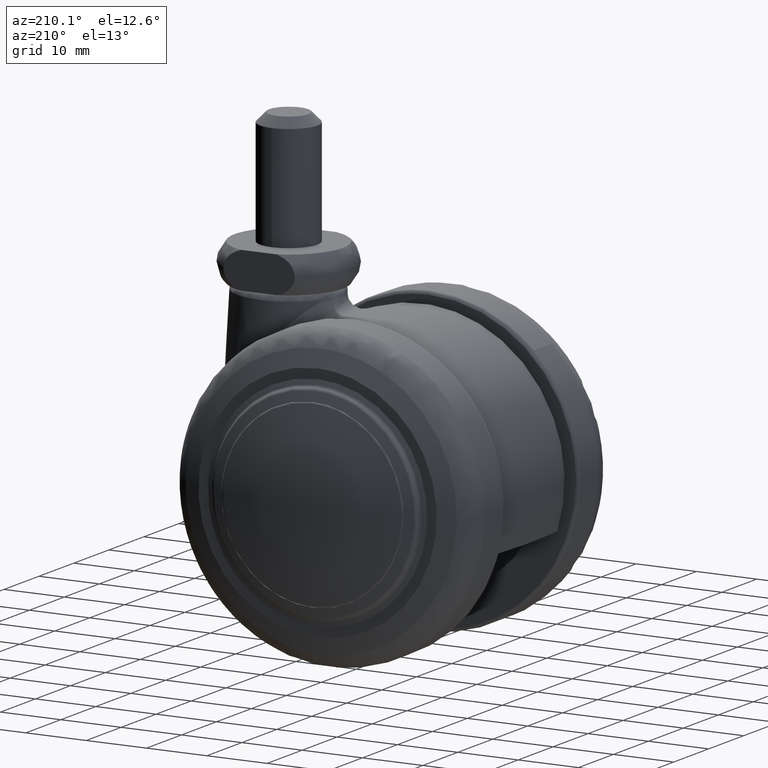
[diagram: clean part render]
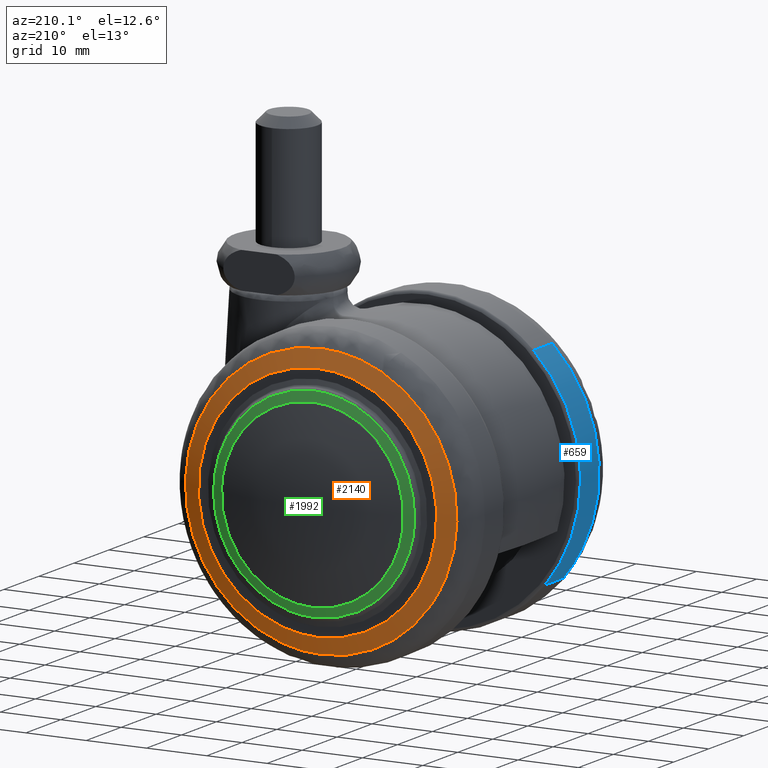
[diagram: same view with three faces highlighted in distinct colors, each labeled with its STEP entity id]
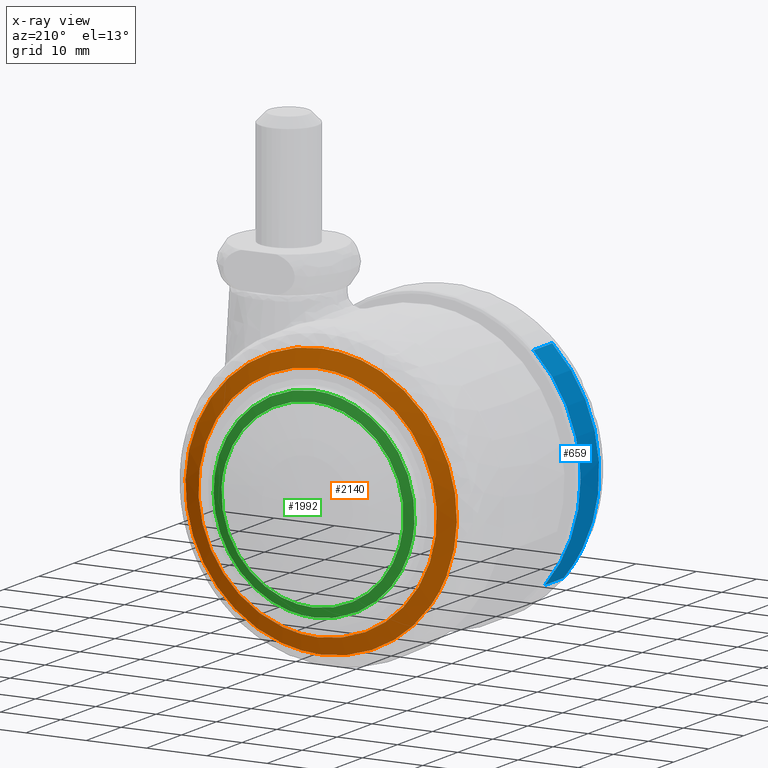
[diagram: x-ray of the same camera — body ghosted, the three highlighted faces saturated]
A machine part, auxiliary view with three faces highlighted in distinct colors.
The next image is the same camera in x-ray (body ghosted, the three faces saturated) — at least one of them is partly hidden behind the body in this view.
Their STEP definitions:

[orange] entity #2140 — the highlighted face is a freeform B-spline surface patch.
#1491=CARTESIAN_POINT('',(9.975672701248211,-20.052650238675671,20.167695820285779));
#1492=VERTEX_POINT('',#1491);
#1493=CARTESIAN_POINT('',(0.0,-20.052650239281650,22.500000010546600));
#1494=VERTEX_POINT('',#1493);
#1495=CARTESIAN_POINT('',(9.975672701248211,-20.052650238675664,20.167695820285783));
#1496=CARTESIAN_POINT('',(5.260481765112745,-20.052650239281647,22.500000010546604));
#1497=CARTESIAN_POINT('',(0.0,-20.052650239281650,22.500000010546600));
#1505=(BOUNDED_CURVE()B_SPLINE_CURVE(2,(#1495,#1496,#1497),.UNSPECIFIED.,.F.,.U.)B_SPLINE_CURVE_WITH_KNOTS((3,3),(0.424637790835269,0.500000000000000),.UNSPECIFIED.)CURVE()GEOMETRIC_REPRESENTATION_ITEM()RATIONAL_B_SPLINE_CURVE((0.876646594192813,0.911707679923397,1.0))REPRESENTATION_ITEM(''));
#1506=EDGE_CURVE('',#1492,#1494,#1505,.T.);
#1526=CARTESIAN_POINT('',(20.705216575500302,-20.052650239253548,-8.805907507993847));
#1527=VERTEX_POINT('',#1526);
#1541=CARTESIAN_POINT('',(0.0,-20.052650239281650,-22.500000010546589));
#1542=VERTEX_POINT('',#1541);
#1543=CARTESIAN_POINT('',(0.0,-20.052650239281650,-22.500000010546589));
#1544=CARTESIAN_POINT('',(14.881132990319578,-20.052650239281647,-22.500000010546600));
#1545=CARTESIAN_POINT('',(20.705216575500302,-20.052650239253552,-8.805907507993847));
#1553=(BOUNDED_CURVE()B_SPLINE_CURVE(2,(#1543,#1544,#1545),.UNSPECIFIED.,.F.,.U.)B_SPLINE_CURVE_WITH_KNOTS((3,3),(0.0,0.183550134662979),.UNSPECIFIED.)CURVE()GEOMETRIC_REPRESENTATION_ITEM()RATIONAL_B_SPLINE_CURVE((1.0,0.784957640979670,0.885683713610749))REPRESENTATION_ITEM(''));
#1554=EDGE_CURVE('',#1542,#1527,#1553,.T.);
#1556=CARTESIAN_POINT('',(0.0,-20.052650239281650,22.500000010546600));
#1557=CARTESIAN_POINT('',(-22.500000010546600,-20.052650239281654,22.500000010546600));
#1558=CARTESIAN_POINT('',(-22.500000010546600,-20.052650239281650,1.789254E-015));
#1559=CARTESIAN_POINT('',(-22.500000010546600,-20.052650239281654,-22.500000010546600));
#1560=CARTESIAN_POINT('',(0.0,-20.052650239281650,-22.500000010546589));
#1568=(BOUNDED_CURVE()B_SPLINE_CURVE(2,(#1556,#1557,#1558,#1559,#1560),.UNSPECIFIED.,.F.,.U.)B_SPLINE_CURVE_WITH_KNOTS((3,2,3),(0.500000000000000,0.750000000000000,1.0),.UNSPECIFIED.)CURVE()GEOMETRIC_REPRESENTATION_ITEM()RATIONAL_B_SPLINE_CURVE((1.0,0.707106781186547,1.0,0.707106781186547,1.0))REPRESENTATION_ITEM(''));
#1569=EDGE_CURVE('',#1494,#1542,#1568,.T.);
#1591=CARTESIAN_POINT('',(20.705216575500298,-20.052650239253545,-8.805907507993847));
#1592=CARTESIAN_POINT('',(22.500000010546593,-20.052650239281647,-4.585856400647058));
#1593=CARTESIAN_POINT('',(22.500000010546600,-20.052650239281650,1.789254E-015));
#1594=CARTESIAN_POINT('',(22.500000010546596,-20.052650239281643,13.972709978116622));
#1595=CARTESIAN_POINT('',(9.975672701248211,-20.052650238675664,20.167695820285783));
#1603=(BOUNDED_CURVE()B_SPLINE_CURVE(2,(#1591,#1592,#1593,#1594,#1595),.UNSPECIFIED.,.F.,.U.)B_SPLINE_CURVE_WITH_KNOTS((3,2,3),(0.183550134662979,0.250000000000000,0.424637790835269),.UNSPECIFIED.)CURVE()GEOMETRIC_REPRESENTATION_ITEM()RATIONAL_B_SPLINE_CURVE((0.885683713610749,0.922149140206877,1.0,0.795399101263150,0.876646594192813))REPRESENTATION_ITEM(''));
#1604=EDGE_CURVE('',#1527,#1492,#1603,.T.);
#2065=CARTESIAN_POINT('',(0.0,-21.081931999999899,-19.765886228730452));
#2066=VERTEX_POINT('',#2065);
#2067=CARTESIAN_POINT('',(0.0,-21.081931999999899,19.765886228730459));
#2068=VERTEX_POINT('',#2067);
#2069=CARTESIAN_POINT('',(0.0,-21.081931999999899,-19.765886228730452));
#2070=CARTESIAN_POINT('',(19.765886228730455,-21.081931999999892,-19.765886228730455));
#2071=CARTESIAN_POINT('',(19.765886228730452,-21.081931999999899,1.789254E-015));
#2072=CARTESIAN_POINT('',(19.765886228730455,-21.081931999999892,19.765886228730455));
#2073=CARTESIAN_POINT('',(0.0,-21.081931999999899,19.765886228730459));
#2081=(BOUNDED_CURVE()B_SPLINE_CURVE(2,(#2069,#2070,#2071,#2072,#2073),.UNSPECIFIED.,.F.,.U.)B_SPLINE_CURVE_WITH_KNOTS((3,2,3),(0.0,0.250000000000000,0.500000000000000),.UNSPECIFIED.)CURVE()GEOMETRIC_REPRESENTATION_ITEM()RATIONAL_B_SPLINE_CURVE((1.0,0.707106781186548,1.0,0.707106781186548,1.0))REPRESENTATION_ITEM(''));
#2082=EDGE_CURVE('',#2066,#2068,#2081,.T.);
#2084=CARTESIAN_POINT('',(0.0,-21.081931999999899,19.765886228730459));
#2085=CARTESIAN_POINT('',(-19.765886228730455,-21.081931999999892,19.765886228730455));
#2086=CARTESIAN_POINT('',(-19.765886228730452,-21.081931999999899,1.789254E-015));
#2087=CARTESIAN_POINT('',(-19.765886228730455,-21.081931999999892,-19.765886228730455));
#2088=CARTESIAN_POINT('',(0.0,-21.081931999999899,-19.765886228730452));
#2096=(BOUNDED_CURVE()B_SPLINE_CURVE(2,(#2084,#2085,#2086,#2087,#2088),.UNSPECIFIED.,.F.,.U.)B_SPLINE_CURVE_WITH_KNOTS((3,2,3),(0.500000000000000,0.750000000000000,1.0),.UNSPECIFIED.)CURVE()GEOMETRIC_REPRESENTATION_ITEM()RATIONAL_B_SPLINE_CURVE((1.0,0.707106781186548,1.0,0.707106781186548,1.0))REPRESENTATION_ITEM(''));
#2097=EDGE_CURVE('',#2068,#2066,#2096,.T.);
#2106=CARTESIAN_POINT('',(-23.529031152137861,-14.358802987607762,-23.529032246445652));
#2107=CARTESIAN_POINT('',(-12.279879532431531,-19.174364121992451,-24.559760207108795));
#2108=CARTESIAN_POINT('',(12.279867601254651,-19.174364121992451,-24.559760207108795));
#2109=CARTESIAN_POINT('',(23.529010210099933,-14.358811952515842,-23.529034165304342));
#2110=CARTESIAN_POINT('',(-24.559759164938963,-19.174364589547135,-12.279880153592352));
#2111=CARTESIAN_POINT('',(-12.842464883672150,-24.431162000000029,-12.842465480960200));
#2112=CARTESIAN_POINT('',(12.842452405885240,-24.431162000000029,-12.842465480960200));
#2113=CARTESIAN_POINT('',(24.559737393241551,-19.174374357104270,-12.279881198921638));
#2114=CARTESIAN_POINT('',(-24.559759164938963,-19.174364589547135,12.279879656306701));
#2115=CARTESIAN_POINT('',(-12.842464883672140,-24.431162000000029,12.842464960892110));
#2116=CARTESIAN_POINT('',(12.842452405885240,-24.431162000000029,12.842464960892110));
#2117=CARTESIAN_POINT('',(24.559737393241551,-19.174374357104270,12.279880701635944));
#2118=CARTESIAN_POINT('',(-23.529031232114985,-14.358803361260932,23.529031373591785));
#2119=CARTESIAN_POINT('',(-12.279879576000360,-19.174364529099652,24.559759299675136));
#2120=CARTESIAN_POINT('',(12.279867644823439,-19.174364529099652,24.559759299675136));
#2121=CARTESIAN_POINT('',(23.529010290077014,-14.358812326169089,23.529033292450432));
#2129=(BOUNDED_SURFACE()B_SPLINE_SURFACE(2,2,((#2106,#2110,#2114,#2118),(#2107,#2111,#2115,#2119),(#2108,#2112,#2116,#2120),(#2109,#2113,#2117,#2121)),.UNSPECIFIED.,.F.,.F.,.U.)B_SPLINE_SURFACE_WITH_KNOTS((3,1,3),(3,1,3),(9.826574003028870,34.408243677050592,58.989889467430118),(9.826572859764099,34.408243677050592,58.989913498878479),.UNSPECIFIED.)GEOMETRIC_REPRESENTATION_ITEM()RATIONAL_B_SPLINE_SURFACE(((1.091627173310557,1.045813584524542,1.045813584524542,1.091627169600026),(1.045813588786015,1.0,1.0,1.045813585075484),(1.045813588786015,1.0,1.0,1.045813585075484),(1.091627084285301,1.045813495499286,1.045813495499286,1.091627080574769)))REPRESENTATION_ITEM('')SURFACE());
#2130=ORIENTED_EDGE('',*,*,#1554,.T.);
#2131=ORIENTED_EDGE('',*,*,#1604,.T.);
#2132=ORIENTED_EDGE('',*,*,#1506,.T.);
#2133=ORIENTED_EDGE('',*,*,#1569,.T.);
#2134=EDGE_LOOP('',(#2130,#2131,#2132,#2133));
#2135=FACE_OUTER_BOUND('',#2134,.T.);
#2136=ORIENTED_EDGE('',*,*,#2082,.F.);
#2137=ORIENTED_EDGE('',*,*,#2097,.F.);
#2138=EDGE_LOOP('',(#2136,#2137));
#2139=FACE_BOUND('',#2138,.T.);
#2140=ADVANCED_FACE('',(#2135,#2139),#2129,.T.);

[blue] entity #659 — the highlighted face is a freeform B-spline surface patch.
#442=CARTESIAN_POINT('',(-19.088893368904021,-16.344550999999949,-16.143548245370319));
#443=VERTEX_POINT('',#442);
#459=CARTESIAN_POINT('',(-19.088893340583990,-10.999999999996691,-16.143548278857281));
#460=VERTEX_POINT('',#459);
#461=CARTESIAN_POINT('',(-19.088893340583990,-10.999999999996691,-16.143548278857281));
#462=CARTESIAN_POINT('',(-19.088893368904021,-16.344550999999949,-16.143548245370319));
#463=QUASI_UNIFORM_CURVE('',1,(#461,#462),.UNSPECIFIED.,.F.,.U.);
#464=EDGE_CURVE('',#460,#443,#463,.T.);
#513=CARTESIAN_POINT('',(-17.208864027242701,-10.999999999997421,18.134359621775221));
#514=VERTEX_POINT('',#513);
#528=CARTESIAN_POINT('',(-17.208864031641689,-16.344550999999999,18.134359617600751));
#529=VERTEX_POINT('',#528);
#530=CARTESIAN_POINT('',(-17.208864027242701,-10.999999999997421,18.134359621775221));
#531=CARTESIAN_POINT('',(-17.208864031641689,-16.344550999999999,18.134359617600751));
#532=QUASI_UNIFORM_CURVE('',1,(#530,#531),.UNSPECIFIED.,.F.,.U.);
#533=EDGE_CURVE('',#514,#529,#532,.T.);
#598=CARTESIAN_POINT('',(-17.208864392343848,-10.866386224989920,18.134359275307190));
#599=CARTESIAN_POINT('',(-34.334108954376731,-10.866386224989915,1.883108989611296));
#600=CARTESIAN_POINT('',(-19.088891073511626,-10.866386224989915,-16.143550959550634));
#601=CARTESIAN_POINT('',(-17.208864392343848,-16.481505119395489,18.134359275307190));
#602=CARTESIAN_POINT('',(-34.334108954376731,-16.481505119395482,1.883108989611296));
#603=CARTESIAN_POINT('',(-19.088891073511626,-16.481505119395493,-16.143550959550634));
#611=(BOUNDED_SURFACE()B_SPLINE_SURFACE(2,1,((#598,#601),(#599,#602),(#600,#603)),.UNSPECIFIED.,.F.,.F.,.U.)B_SPLINE_SURFACE_WITH_KNOTS((3,3),(2,2),(0.0,39.753588967719757),(0.0,5.615118894405573),.UNSPECIFIED.)GEOMETRIC_REPRESENTATION_ITEM()RATIONAL_B_SPLINE_SURFACE(((1.0,1.0),(0.718822509939086,0.718822509939086),(0.977505800795127,0.977505800795127)))REPRESENTATION_ITEM('')SURFACE());
#612=CARTESIAN_POINT('',(-17.208864031641689,-16.344551000000003,18.134359617600747));
#613=CARTESIAN_POINT('',(-24.999999999999996,-16.344550999999999,10.740848238221860));
#614=CARTESIAN_POINT('',(-25.0,-16.344550999999999,1.789254E-015));
#615=CARTESIAN_POINT('',(-25.000000000000007,-16.344550999999999,-9.153976779533146));
#616=CARTESIAN_POINT('',(-19.088893368904021,-16.344550999999942,-16.143548245370322));
#624=(BOUNDED_CURVE()B_SPLINE_CURVE(2,(#612,#613,#614,#615,#616),.UNSPECIFIED.,.F.,.U.)B_SPLINE_CURVE_WITH_KNOTS((3,2,3),(0.621049520655546,0.750000000000000,0.862408068232120),.UNSPECIFIED.)CURVE()GEOMETRIC_REPRESENTATION_ITEM()RATIONAL_B_SPLINE_CURVE((0.853699661814012,0.848925116149061,1.0,0.868305756299569,0.855039476852381))REPRESENTATION_ITEM(''));
#625=EDGE_CURVE('',#529,#443,#624,.T.);
#626=ORIENTED_EDGE('',*,*,#625,.F.);
#627=ORIENTED_EDGE('',*,*,#533,.F.);
#628=CARTESIAN_POINT('',(-25.0,-10.999999999990640,3.546573E-015));
#629=VERTEX_POINT('',#628);
#630=CARTESIAN_POINT('',(-17.208864027242701,-10.999999999997421,18.134359621775214));
#631=CARTESIAN_POINT('',(-24.999999999999940,-10.999999999994664,10.740848245405694));
#632=CARTESIAN_POINT('',(-25.0,-10.999999999990642,3.546573E-015));
#640=(BOUNDED_CURVE()B_SPLINE_CURVE(2,(#630,#631,#632),.UNSPECIFIED.,.F.,.U.)B_SPLINE_CURVE_WITH_KNOTS((3,3),(0.621049520582329,0.749999999999999),.UNSPECIFIED.)CURVE()GEOMETRIC_REPRESENTATION_ITEM()RATIONAL_B_SPLINE_CURVE((0.853699661819434,0.848925116063282,0.999999999999998))REPRESENTATION_ITEM(''));
#641=EDGE_CURVE('',#514,#629,#640,.T.);
#642=ORIENTED_EDGE('',*,*,#641,.T.);
#643=CARTESIAN_POINT('',(-25.0,-10.999999999990640,3.546573E-015));
#644=CARTESIAN_POINT('',(-24.999999999999993,-10.999999999994067,-9.153976804401419));
#645=CARTESIAN_POINT('',(-19.088893340583990,-10.999999999996685,-16.143548278857281));
#653=(BOUNDED_CURVE()B_SPLINE_CURVE(2,(#643,#644,#645),.UNSPECIFIED.,.F.,.U.)B_SPLINE_CURVE_WITH_KNOTS((3,3),(0.750000000000000,0.862408068497279),.UNSPECIFIED.)CURVE()GEOMETRIC_REPRESENTATION_ITEM()RATIONAL_B_SPLINE_CURVE((1.0,0.868305755988916,0.855039476789794))REPRESENTATION_ITEM(''));
#654=EDGE_CURVE('',#629,#460,#653,.T.);
#655=ORIENTED_EDGE('',*,*,#654,.T.);
#656=ORIENTED_EDGE('',*,*,#464,.T.);
#657=EDGE_LOOP('',(#626,#627,#642,#655,#656));
#658=FACE_OUTER_BOUND('',#657,.T.);
#659=ADVANCED_FACE('',(#658),#611,.T.);

[green] entity #1992 — the highlighted face is a freeform B-spline surface patch.
#271=CARTESIAN_POINT('',(14.994445155853590,-22.512973365200398,-1.782305941182970));
#272=VERTEX_POINT('',#271);
#278=CARTESIAN_POINT('',(0.0,-22.512973365200398,15.100000000000000));
#279=VERTEX_POINT('',#278);
#280=CARTESIAN_POINT('',(14.994445155853587,-22.512973365200402,-1.782305941182971));
#281=CARTESIAN_POINT('',(15.100000000000000,-22.512973365200402,-0.894278647520827));
#282=CARTESIAN_POINT('',(15.100000000000000,-22.512973365200398,1.789254E-015));
#283=CARTESIAN_POINT('',(15.100000000000005,-22.512973365200398,15.100000000000005));
#284=CARTESIAN_POINT('',(0.0,-22.512973365200398,15.100000000000000));
#292=(BOUNDED_CURVE()B_SPLINE_CURVE(2,(#280,#281,#282,#283,#284),.UNSPECIFIED.,.F.,.U.)B_SPLINE_CURVE_WITH_KNOTS((3,2,3),(0.229562597521343,0.250000000000000,0.500000000000000),.UNSPECIFIED.)CURVE()GEOMETRIC_REPRESENTATION_ITEM()RATIONAL_B_SPLINE_CURVE((0.956026997244275,0.976056093615361,1.0,0.707106781186547,1.0))REPRESENTATION_ITEM(''));
#293=EDGE_CURVE('',#272,#279,#292,.T.);
#295=CARTESIAN_POINT('',(-15.071836618438310,-22.512973365200398,0.921813943667406));
#296=VERTEX_POINT('',#295);
#297=CARTESIAN_POINT('',(0.0,-22.512973365200398,15.100000000000000));
#298=CARTESIAN_POINT('',(-14.204679553686956,-22.512973365200398,15.100000000000000));
#299=CARTESIAN_POINT('',(-15.071836618438306,-22.512973365200398,0.921813943667406));
#307=(BOUNDED_CURVE()B_SPLINE_CURVE(2,(#297,#298,#299),.UNSPECIFIED.,.F.,.U.)B_SPLINE_CURVE_WITH_KNOTS((3,3),(0.500000000000000,0.739333179797454),.UNSPECIFIED.)CURVE()GEOMETRIC_REPRESENTATION_ITEM()RATIONAL_B_SPLINE_CURVE((1.0,0.719603738401060,0.976072507936465))REPRESENTATION_ITEM(''));
#308=EDGE_CURVE('',#279,#296,#307,.T.);
#382=CARTESIAN_POINT('',(0.0,-22.512973365200398,-15.100000000000000));
#383=VERTEX_POINT('',#382);
#384=CARTESIAN_POINT('',(-15.071836618438306,-22.512973365200398,0.921813943667406));
#385=CARTESIAN_POINT('',(-15.100000000000003,-22.512973365200398,0.461337197513431));
#386=CARTESIAN_POINT('',(-15.100000000000000,-22.512973365200398,1.789254E-015));
#387=CARTESIAN_POINT('',(-15.100000000000005,-22.512973365200398,-15.100000000000005));
#388=CARTESIAN_POINT('',(0.0,-22.512973365200398,-15.100000000000000));
#396=(BOUNDED_CURVE()B_SPLINE_CURVE(2,(#384,#385,#386,#387,#388),.UNSPECIFIED.,.F.,.U.)B_SPLINE_CURVE_WITH_KNOTS((3,2,3),(0.739333179797454,0.750000000000000,1.0),.UNSPECIFIED.)CURVE()GEOMETRIC_REPRESENTATION_ITEM()RATIONAL_B_SPLINE_CURVE((0.976072507936465,0.987503042785488,1.0,0.707106781186547,1.0))REPRESENTATION_ITEM(''));
#397=EDGE_CURVE('',#296,#383,#396,.T.);
#399=CARTESIAN_POINT('',(0.0,-22.512973365200398,-15.100000000000000));
#400=CARTESIAN_POINT('',(13.411445251748493,-22.512973365200398,-15.100000000000005));
#401=CARTESIAN_POINT('',(14.994445155853587,-22.512973365200402,-1.782305941182971));
#409=(BOUNDED_CURVE()B_SPLINE_CURVE(2,(#399,#400,#401),.UNSPECIFIED.,.F.,.U.)B_SPLINE_CURVE_WITH_KNOTS((3,3),(0.0,0.229562597521343),.UNSPECIFIED.)CURVE()GEOMETRIC_REPRESENTATION_ITEM()RATIONAL_B_SPLINE_CURVE((1.0,0.731050687571187,0.956026997244275))REPRESENTATION_ITEM(''));
#410=EDGE_CURVE('',#383,#272,#409,.T.);
#1170=CARTESIAN_POINT('',(16.633452372379711,-22.069978345369229,-1.046488120489840));
#1171=VERTEX_POINT('',#1170);
#1185=CARTESIAN_POINT('',(0.0,-22.069978467936402,-16.666339162555900));
#1186=VERTEX_POINT('',#1185);
#1187=CARTESIAN_POINT('',(0.0,-22.069978467936402,-16.666339162555900));
#1188=CARTESIAN_POINT('',(15.650734218292438,-22.069978467936409,-16.666339162555893));
#1189=CARTESIAN_POINT('',(16.633452372379711,-22.069978345369236,-1.046488120489840));
#1197=(BOUNDED_CURVE()B_SPLINE_CURVE(2,(#1187,#1188,#1189),.UNSPECIFIED.,.F.,.U.)B_SPLINE_CURVE_WITH_KNOTS((3,3),(0.0,0.239031910756843),.UNSPECIFIED.)CURVE()GEOMETRIC_REPRESENTATION_ITEM()RATIONAL_B_SPLINE_CURVE((1.0,0.719956697037194,0.975427680489243))REPRESENTATION_ITEM(''));
#1198=EDGE_CURVE('',#1186,#1171,#1197,.T.);
#1200=CARTESIAN_POINT('',(0.0,-22.069978467936402,16.666339162555900));
#1201=VERTEX_POINT('',#1200);
#1202=CARTESIAN_POINT('',(0.0,-22.069978467936402,16.666339162555900));
#1203=CARTESIAN_POINT('',(-16.666339162555897,-22.069978467936405,16.666339162555897));
#1204=CARTESIAN_POINT('',(-16.666339162555900,-22.069978467936402,1.789254E-015));
#1205=CARTESIAN_POINT('',(-16.666339162555897,-22.069978467936405,-16.666339162555897));
#1206=CARTESIAN_POINT('',(0.0,-22.069978467936402,-16.666339162555900));
#1214=(BOUNDED_CURVE()B_SPLINE_CURVE(2,(#1202,#1203,#1204,#1205,#1206),.UNSPECIFIED.,.F.,.U.)B_SPLINE_CURVE_WITH_KNOTS((3,2,3),(0.500000000000000,0.750000000000000,1.0),.UNSPECIFIED.)CURVE()GEOMETRIC_REPRESENTATION_ITEM()RATIONAL_B_SPLINE_CURVE((1.0,0.707106781186547,1.0,0.707106781186547,1.0))REPRESENTATION_ITEM(''));
#1215=EDGE_CURVE('',#1201,#1186,#1214,.T.);
#1217=CARTESIAN_POINT('',(6.855630844107353,-22.069978345371592,15.191023696235989));
#1218=VERTEX_POINT('',#1217);
#1219=CARTESIAN_POINT('',(6.855630844107353,-22.069978345371592,15.191023696235989));
#1220=CARTESIAN_POINT('',(3.586557613120557,-22.069978467936398,16.666339162555904));
#1221=CARTESIAN_POINT('',(0.0,-22.069978467936402,16.666339162555900));
#1229=(BOUNDED_CURVE()B_SPLINE_CURVE(2,(#1219,#1220,#1221),.UNSPECIFIED.,.F.,.U.)B_SPLINE_CURVE_WITH_KNOTS((3,3),(0.430143025654430,0.500000000000000),.UNSPECIFIED.)CURVE()GEOMETRIC_REPRESENTATION_ITEM()RATIONAL_B_SPLINE_CURVE((0.882053103083072,0.918157463709429,1.0))REPRESENTATION_ITEM(''));
#1230=EDGE_CURVE('',#1218,#1201,#1229,.T.);
#1287=CARTESIAN_POINT('',(16.633452372379701,-22.069978345369229,-1.046488120489840));
#1288=CARTESIAN_POINT('',(16.666339162555897,-22.069978467936398,-0.523760807694132));
#1289=CARTESIAN_POINT('',(16.666339162555900,-22.069978467936402,1.789254E-015));
#1290=CARTESIAN_POINT('',(16.666339162555900,-22.069978467936402,10.763501038371819));
#1291=CARTESIAN_POINT('',(6.855630844107354,-22.069978345371592,15.191023696235993));
#1299=(BOUNDED_CURVE()B_SPLINE_CURVE(2,(#1287,#1288,#1289,#1290,#1291),.UNSPECIFIED.,.F.,.U.)B_SPLINE_CURVE_WITH_KNOTS((3,2,3),(0.239031910756843,0.250000000000000,0.430143025654430),.UNSPECIFIED.)CURVE()GEOMETRIC_REPRESENTATION_ITEM()RATIONAL_B_SPLINE_CURVE((0.975427680489243,0.987150084149354,1.0,0.788949317477119,0.882053103083072))REPRESENTATION_ITEM(''));
#1300=EDGE_CURVE('',#1171,#1218,#1299,.T.);
#1956=CARTESIAN_POINT('',(-17.805041908350375,-18.789210452853400,-17.805170034991008));
#1957=CARTESIAN_POINT('',(-9.125736689969410,-21.572989771254967,-18.251604780307645));
#1958=CARTESIAN_POINT('',(9.124419893353217,-21.572989767385426,-18.251604780307655));
#1959=CARTESIAN_POINT('',(17.802598369449683,-18.789994127756170,-17.805295714161627));
#1960=CARTESIAN_POINT('',(-18.251479984325378,-21.573031032207385,-9.125805641647862));
#1961=CARTESIAN_POINT('',(-9.360437294752948,-24.499999848291239,-9.360504689335180));
#1962=CARTESIAN_POINT('',(9.359086632689618,-24.499999844322179,-9.360504689335182));
#1963=CARTESIAN_POINT('',(18.248978407299081,-21.573854499380424,-9.125871671998606));
#1964=CARTESIAN_POINT('',(-18.251479984325378,-21.573031331886977,9.125804982395330));
#1965=CARTESIAN_POINT('',(-9.360437294752948,-24.500000155678041,9.360503912396620));
#1966=CARTESIAN_POINT('',(9.359086632689618,-24.500000151708981,9.360503912396618));
#1967=CARTESIAN_POINT('',(18.248978407299081,-21.573854799062183,9.125871012712963));
#1968=CARTESIAN_POINT('',(-17.805041988396116,-18.789211536687265,17.805168749592802));
#1969=CARTESIAN_POINT('',(-9.125736732024461,-21.572990895092921,18.251603366532059));
#1970=CARTESIAN_POINT('',(9.124419935402198,-21.572990891223391,18.251603366532059));
#1971=CARTESIAN_POINT('',(17.802598449485007,-18.789995211601205,17.805294428727265));
#1979=(BOUNDED_SURFACE()B_SPLINE_SURFACE(2,2,((#1956,#1960,#1964,#1968),(#1957,#1961,#1965,#1969),(#1958,#1962,#1966,#1970),(#1959,#1963,#1967,#1971)),.UNSPECIFIED.,.F.,.F.,.U.)B_SPLINE_SURFACE_WITH_KNOTS((3,1,3),(3,1,3),(12.230433914041519,30.297970171461749,48.362899330282211),(12.230303772401809,30.297970171461760,48.365634910154341),.UNSPECIFIED.)GEOMETRIC_REPRESENTATION_ITEM()RATIONAL_B_SPLINE_SURFACE(((1.051436705337843,1.025718167418620,1.025718167418620,1.051436700610922),(1.025718537919223,1.0,1.0,1.025718533192301),(1.025718537919223,1.0,1.0,1.025718533192301),(1.051429283743691,1.025710745824469,1.025710745824469,1.051429279016770)))REPRESENTATION_ITEM('')SURFACE());
#1980=ORIENTED_EDGE('',*,*,#1198,.T.);
#1981=ORIENTED_EDGE('',*,*,#1300,.T.);
#1982=ORIENTED_EDGE('',*,*,#1230,.T.);
#1983=ORIENTED_EDGE('',*,*,#1215,.T.);
#1984=EDGE_LOOP('',(#1980,#1981,#1982,#1983));
#1985=FACE_OUTER_BOUND('',#1984,.T.);
#1986=ORIENTED_EDGE('',*,*,#308,.F.);
#1987=ORIENTED_EDGE('',*,*,#293,.F.);
#1988=ORIENTED_EDGE('',*,*,#410,.F.);
#1989=ORIENTED_EDGE('',*,*,#397,.F.);
#1990=EDGE_LOOP('',(#1986,#1987,#1988,#1989));
#1991=FACE_BOUND('',#1990,.T.);
#1992=ADVANCED_FACE('',(#1985,#1991),#1979,.T.);